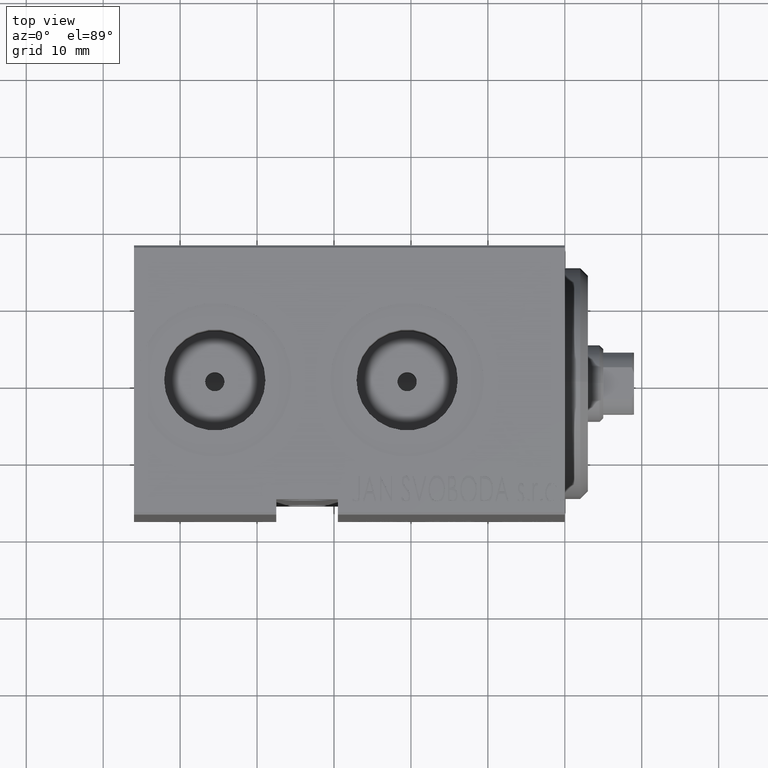
[diagram: clean part render]
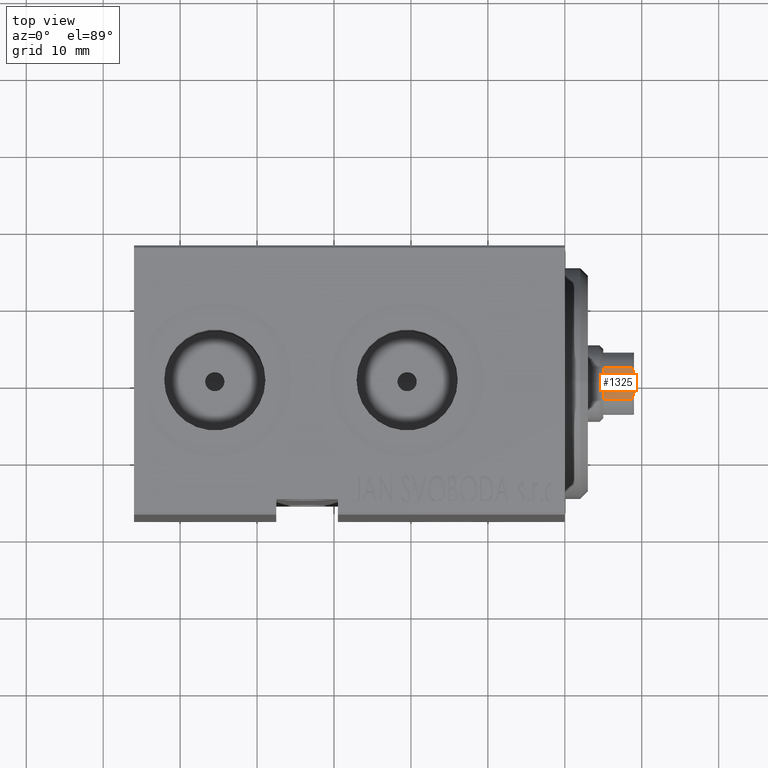
[diagram: same view with one face highlighted and labeled with its STEP entity id]
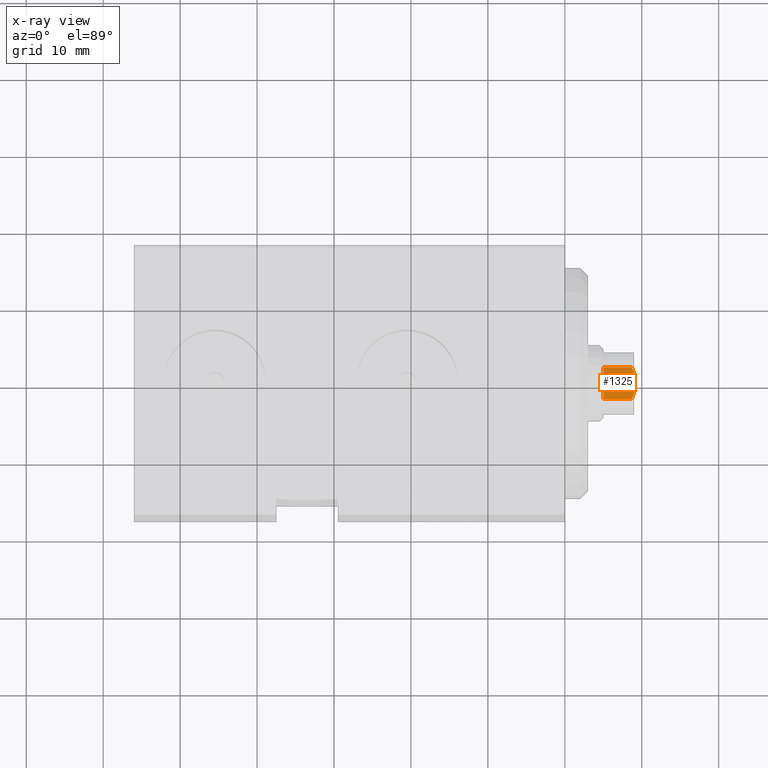
[diagram: x-ray of the same camera — body ghosted, the highlighted face saturated]
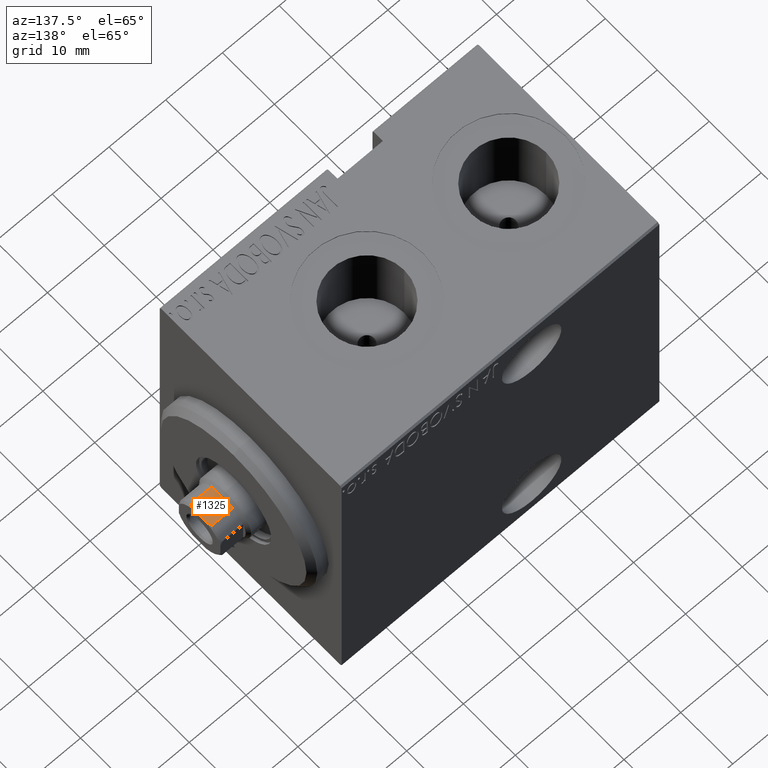
[diagram: same view with one face highlighted and labeled with its STEP entity id]
A machine part, top view. The second image highlights one B-rep face of the part: STEP entity #1325.
The next image is the same camera in x-ray: the body ghosted, the highlighted face saturated — about 0% of this face is hidden behind the body in this view.
A second angle (auxiliary view) of the same face is appended — the face is thin or edge-on in the first view.
In plain terms, the highlighted planar face has unit normal (-0, 0, -1).
Its self-contained STEP definition (entity closure, byte-faithful):
#1290 = LINE ( 'NONE', #27886, #24599 ) ;
#1325 = ADVANCED_FACE ( 'NONE', ( #5980 ), #6203, .F. ) ;
#1497 = ORIENTED_EDGE ( 'NONE', *, *, #13147, .T. ) ;
#2433 = CARTESIAN_POINT ( 'NONE',  ( -3.999999999999999112, 3.999999999999998224, 60.00000000000000000 ) ) ;
#2645 = VERTEX_POINT ( 'NONE', #31177 ) ;
#2821 = VECTOR ( 'NONE', #6582, 1000.000000000000000 ) ;
#5828 = CARTESIAN_POINT ( 'NONE',  ( -4.000000000000001776, -1.807533033248849508, 59.81637226468021851 ) ) ;
#5905 = CARTESIAN_POINT ( 'NONE',  ( -4.000000000000000888, -2.061552812808826296, 56.00000000000002132 ) ) ;
#5980 = FACE_OUTER_BOUND ( 'NONE', #32880, .T. ) ;
#6203 = PLANE ( 'NONE',  #33121 ) ;
#6369 = CARTESIAN_POINT ( 'NONE',  ( -3.999999999999999112, 1.280624847486591555, 60.00000000000000000 ) ) ;
#6582 = DIRECTION ( 'NONE',  ( 1.084202172485504434E-16, -1.000000000000000000, 0.000000000000000000 ) ) ;
#6709 = CARTESIAN_POINT ( 'NONE',  ( -3.999999999999999112, 1.280624847486591555, 60.00000000000000000 ) ) ;
#7437 = VECTOR ( 'NONE', #35458, 1000.000000000000000 ) ;
#8446 = B_SPLINE_CURVE_WITH_KNOTS ( 'NONE', 3,
 ( #17004, #5828, #43577, #16123 ),
 .UNSPECIFIED., .F., .F.,
 ( 4, 4 ),
 ( 0.000000000000000000, 0.0008365694753111088374 ),
 .UNSPECIFIED. ) ;
#9906 = CARTESIAN_POINT ( 'NONE',  ( -4.000000000000001776, -2.061552812808826740, -0.001000000000001000089 ) ) ;
#10769 = VERTEX_POINT ( 'NONE', #24166 ) ;
#11534 = EDGE_CURVE ( 'NONE', #10769, #2645, #8446, .T. ) ;
#13147 = EDGE_CURVE ( 'NONE', #28996, #10769, #23135, .T. ) ;
#16123 = CARTESIAN_POINT ( 'NONE',  ( -3.999999999999999112, -1.280624847486601103, 60.00000000000000000 ) ) ;
#16536 = CARTESIAN_POINT ( 'NONE',  ( -4.000000000000000888, 2.061552812808826740, 56.00000000000002132 ) ) ;
#17004 = CARTESIAN_POINT ( 'NONE',  ( -4.000000000000001776, -2.061552812808826740, 59.70000000000000995 ) ) ;
#17612 = CARTESIAN_POINT ( 'NONE',  ( -4.000000000000000888, 2.061552812808827628, -0.001000000000001000089 ) ) ;
#18470 = ORIENTED_EDGE ( 'NONE', *, *, #41981, .T. ) ;
#18983 = VERTEX_POINT ( 'NONE', #19982 ) ;
#19982 = CARTESIAN_POINT ( 'NONE',  ( -4.000000000000000888, 2.061552812808827628, 59.69999999999998863 ) ) ;
#21613 = DIRECTION ( 'NONE',  ( 1.084202172485504434E-16, -1.000000000000000000, 0.000000000000000000 ) ) ;
#21994 = ORIENTED_EDGE ( 'NONE', *, *, #11534, .T. ) ;
#22686 = EDGE_CURVE ( 'NONE', #34711, #2645, #40998, .T. ) ;
#23135 = LINE ( 'NONE', #9906, #30035 ) ;
#23569 = DIRECTION ( 'NONE',  ( -0.000000000000000000, -0.000000000000000000, 1.000000000000000000 ) ) ;
#24051 = CARTESIAN_POINT ( 'NONE',  ( -3.999999999999999112, 3.999999999999998224, 60.00000000000000000 ) ) ;
#24166 = CARTESIAN_POINT ( 'NONE',  ( -4.000000000000001776, -2.061552812808826740, 59.70000000000000995 ) ) ;
#24599 = VECTOR ( 'NONE', #21613, 1000.000000000000000 ) ;
#26957 = CARTESIAN_POINT ( 'NONE',  ( -3.999999999999999112, 1.548028007149119922, 59.91846592129516580 ) ) ;
#27886 = CARTESIAN_POINT ( 'NONE',  ( -3.999999999999999112, 3.999999999999998224, 56.00000000000000000 ) ) ;
#28996 = VERTEX_POINT ( 'NONE', #5905 ) ;
#29688 = DIRECTION ( 'NONE',  ( 1.000000000000000000, 1.084202172485504434E-16, -0.000000000000000000 ) ) ;
#29696 = EDGE_CURVE ( 'NONE', #34148, #18983, #38378, .T. ) ;
#29712 = EDGE_CURVE ( 'NONE', #34148, #28996, #1290, .T. ) ;
#30035 = VECTOR ( 'NONE', #23569, 1000.000000000000000 ) ;
#30309 = CARTESIAN_POINT ( 'NONE',  ( -3.999999999999999112, 1.807533033248847953, 59.81637226468021140 ) ) ;
#31177 = CARTESIAN_POINT ( 'NONE',  ( -3.999999999999999112, -1.280624847486601103, 60.00000000000000000 ) ) ;
#32505 = ORIENTED_EDGE ( 'NONE', *, *, #29712, .T. ) ;
#32880 = EDGE_LOOP ( 'NONE', ( #1497, #21994, #36336, #18470, #33314, #32505 ) ) ;
#33121 = AXIS2_PLACEMENT_3D ( 'NONE', #2433, #29688, #39280 ) ;
#33314 = ORIENTED_EDGE ( 'NONE', *, *, #29696, .F. ) ;
#34148 = VERTEX_POINT ( 'NONE', #16536 ) ;
#34294 = CARTESIAN_POINT ( 'NONE',  ( -4.000000000000000888, 2.061552812808827628, 59.69999999999998863 ) ) ;
#34711 = VERTEX_POINT ( 'NONE', #6709 ) ;
#35458 = DIRECTION ( 'NONE',  ( -0.000000000000000000, -0.000000000000000000, 1.000000000000000000 ) ) ;
#35571 = B_SPLINE_CURVE_WITH_KNOTS ( 'NONE', 3,
 ( #6369, #26957, #30309, #34294 ),
 .UNSPECIFIED., .F., .F.,
 ( 4, 4 ),
 ( 0.000000000000000000, 0.0008365694753111259678 ),
 .UNSPECIFIED. ) ;
#36336 = ORIENTED_EDGE ( 'NONE', *, *, #22686, .F. ) ;
#38378 = LINE ( 'NONE', #17612, #7437 ) ;
#39280 = DIRECTION ( 'NONE',  ( -1.084202172485504434E-16, 1.000000000000000000, 0.000000000000000000 ) ) ;
#40998 = LINE ( 'NONE', #24051, #2821 ) ;
#41981 = EDGE_CURVE ( 'NONE', #34711, #18983, #35571, .T. ) ;
#43577 = CARTESIAN_POINT ( 'NONE',  ( -3.999999999999998224, -1.548028007149124363, 59.91846592129517290 ) ) ;